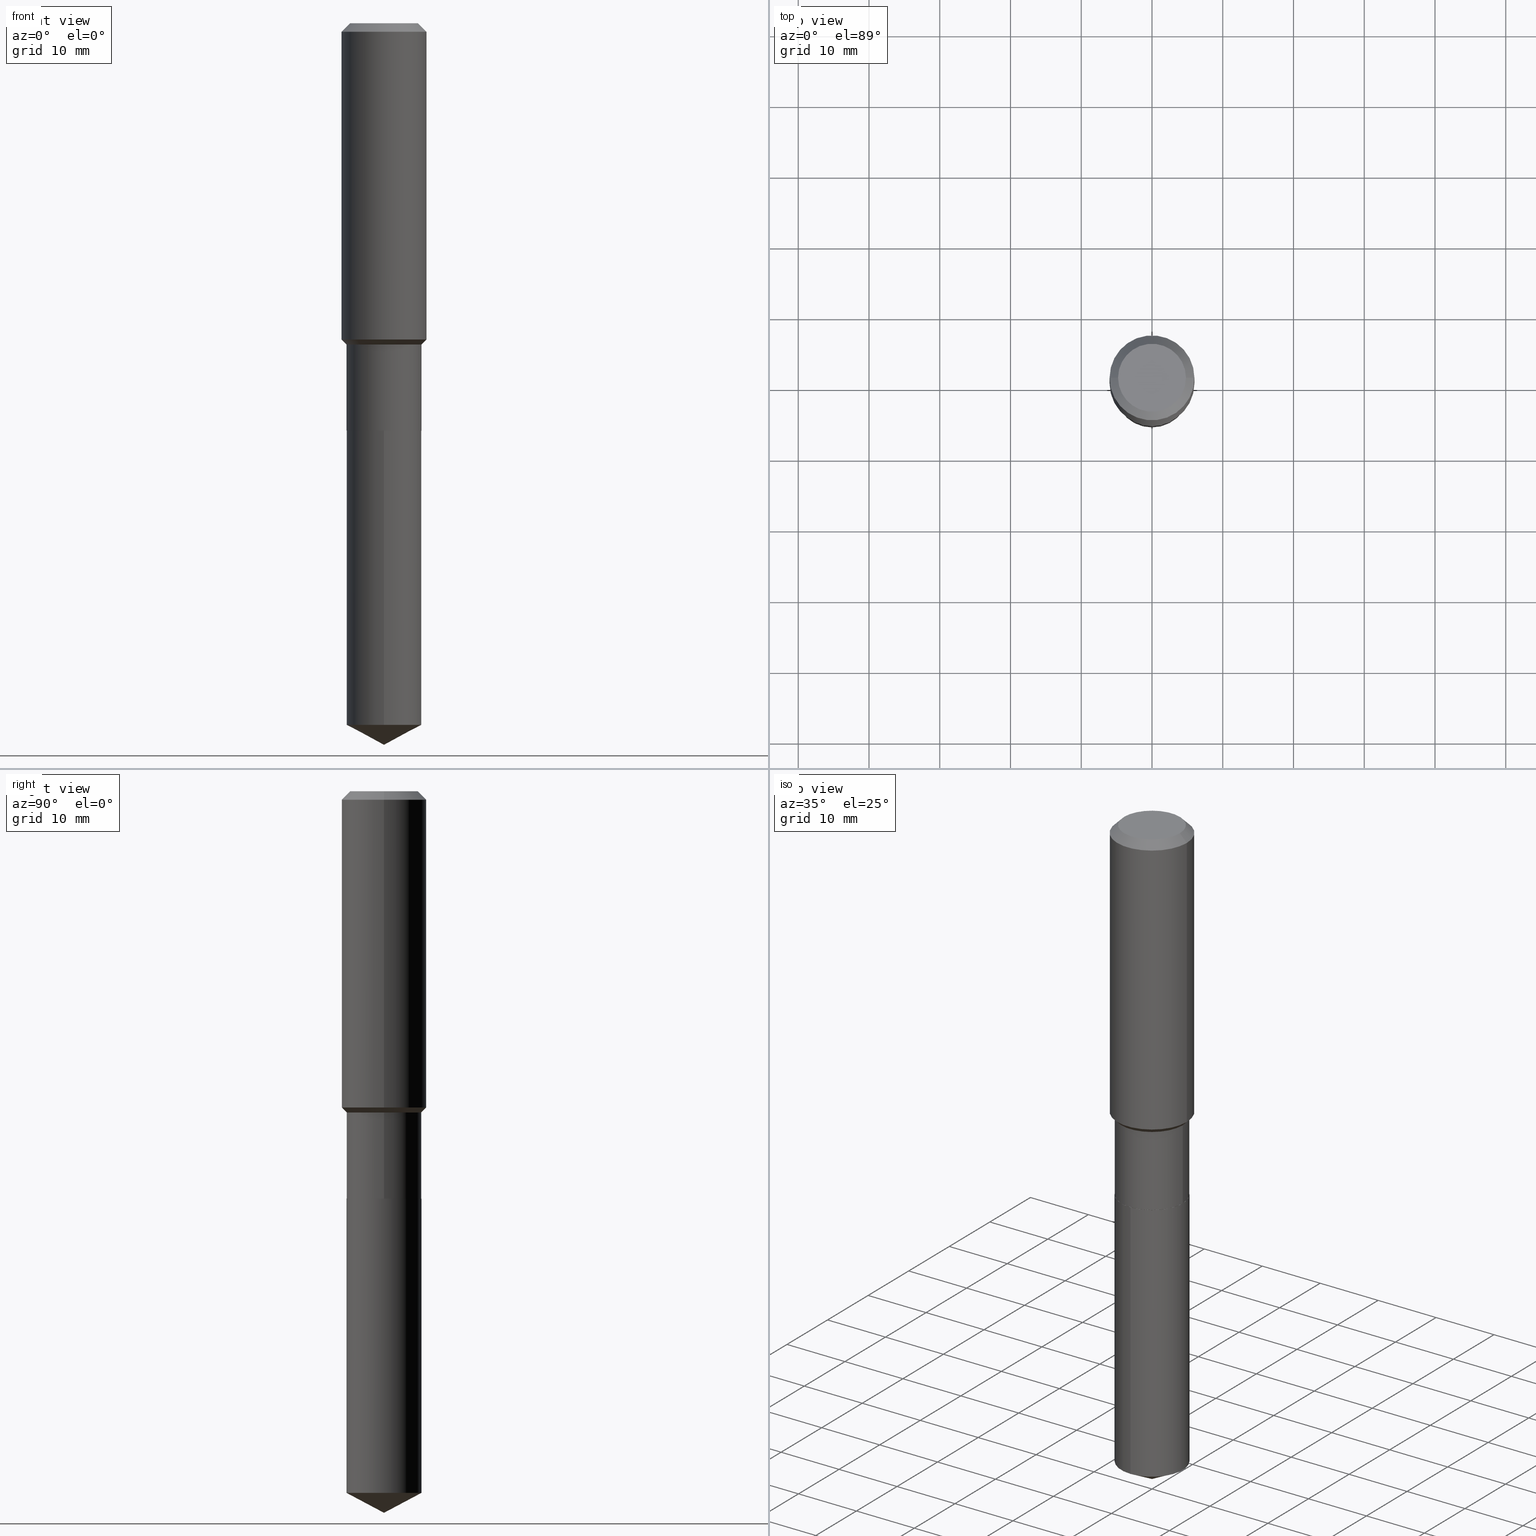
[diagram: canonical four-view strip — front | top / right | iso, engineering-drawing reading convention]
A machine part, canonical four-view strip (front | top / right | iso — engineering-drawing reading convention). The complete STEP part file that produces these views, byte-faithful:
ISO-10303-21;
HEADER;
FILE_DESCRIPTION (( 'STEP AP203' ),
    '1' );
FILE_NAME ('64676.STEP',
    '2024-04-24T18:43:37',
    ( '' ),
    ( '' ),
    'SwSTEP 2.0',
    'SolidWorks 2023',
    '' );
FILE_SCHEMA (( 'CONFIG_CONTROL_DESIGN' ));
ENDSEC;

DATA;
#1 = DIRECTION ( 'NONE',  ( 1.000000000000000000, -6.982962677686263555E-15, 0.000000000000000000 ) ) ;
#2 = CARTESIAN_POINT ( 'NONE',  ( 4.371764584817168227E-29, -6.241721189449890773E-15, -1.787699999999999845 ) ) ;
#3 = CARTESIAN_POINT ( 'NONE',  ( 1.155239464041865506E-30, -1.649375784469511859E-16, -0.04724000000000028177 ) ) ;
#4 = CARTESIAN_POINT ( 'NONE',  ( 0.2361999999999999933, -1.814313362916447440E-15, -0.04724000000000028177 ) ) ;
#5 = CARTESIAN_POINT ( 'NONE',  ( 0.2086499999999999466, -7.698716352149130505E-15, -1.787699999999999845 ) ) ;
#6 = VECTOR ( 'NONE', #81, 39.37007874015748143 ) ;
#7 = VECTOR ( 'NONE', #408, 39.37007874015748143 ) ;
#8 = CARTESIAN_POINT ( 'NONE',  ( 0.000000000000000000, 0.000000000000000000, 0.000000000000000000 ) ) ;
#9 = COORDINATED_UNIVERSAL_TIME_OFFSET ( 5, 0, .BEHIND. ) ;
#10 = DIRECTION ( 'NONE',  ( -2.445388383336124328E-29, 3.491596508940315272E-15, 1.000000000000000000 ) ) ;
#11 = APPROVAL_ROLE ( '' ) ;
#12 = AXIS2_PLACEMENT_3D ( 'NONE', #28, #183, #122 ) ;
#13 = DATE_AND_TIME ( #330, #127 ) ;
#14 = VERTEX_POINT ( 'NONE', #451 ) ;
#15 = ADVANCED_FACE ( 'NONE', ( #274 ), #461, .T. ) ;
#16 = EDGE_CURVE ( 'NONE', #26, #378, #410, .T. ) ;
#17 = ORIENTED_EDGE ( 'NONE', *, *, #181, .F. ) ;
#18 = CARTESIAN_POINT ( 'NONE',  ( 9.819946130962873680E-29, -1.402120410095162262E-14, -4.015699999999999825 ) ) ;
#19 = VERTEX_POINT ( 'NONE', #345 ) ;
#20 = VERTEX_POINT ( 'NONE', #112 ) ;
#21 = CONICAL_SURFACE ( 'NONE', #402, 0.2361999999999999933, 0.7853981633974452814 ) ;
#22 = DIRECTION ( 'NONE',  ( -2.445468806185136597E-29, 3.491481338843145583E-15, 1.000000000000000000 ) ) ;
#23 = VERTEX_POINT ( 'NONE', #231 ) ;
#24 = ORIENTED_EDGE ( 'NONE', *, *, #114, .T. ) ;
#25 = DIRECTION ( 'NONE',  ( -2.445388383336124328E-29, 3.491596508940315272E-15, 1.000000000000000000 ) ) ;
#26 = VERTEX_POINT ( 'NONE', #425 ) ;
#27 = CARTESIAN_POINT ( 'NONE',  ( 0.2081500000000000017, -9.370786765321112099E-15, -2.267600000000000282 ) ) ;
#28 = CARTESIAN_POINT ( 'NONE',  ( -9.427742298522546243E-47, 1.346031739168365344E-32, 3.855188123715862256E-18 ) ) ;
#29 = ORIENTED_EDGE ( 'NONE', *, *, #412, .T. ) ;
#30 = ADVANCED_FACE ( 'NONE', ( #233 ), #156, .T. ) ;
#31 = DIRECTION ( 'NONE',  ( -2.445468806185136597E-29, 3.491481338843145583E-15, 1.000000000000000000 ) ) ;
#32 = ADVANCED_FACE ( 'NONE', ( #391 ), #35, .F. ) ;
#33 = CARTESIAN_POINT ( 'NONE',  ( 5.545345064905416332E-29, -7.917283083960716952E-15, -2.267600000000000282 ) ) ;
#34 = CARTESIAN_POINT ( 'NONE',  ( -9.427742298522546243E-47, 1.346031739168365344E-32, 3.855188123715862256E-18 ) ) ;
#35 = PLANE ( 'NONE',  #82 ) ;
#36 = FACE_OUTER_BOUND ( 'NONE', #324, .T. ) ;
#37 = AXIS2_PLACEMENT_3D ( 'NONE', #42, #244, #277 ) ;
#38 = DIRECTION ( 'NONE',  ( -2.445468806185136597E-29, 3.491481338843145583E-15, 1.000000000000000000 ) ) ;
#39 = CC_DESIGN_PERSON_AND_ORGANIZATION_ASSIGNMENT ( #359, #278, ( #141 ) ) ;
#40 = DIRECTION ( 'NONE',  ( -2.445468806185136597E-29, 3.491481338843145583E-15, 1.000000000000000000 ) ) ;
#41 = DIRECTION ( 'NONE',  ( 2.445468806185136597E-29, -3.491481338843145583E-15, -1.000000000000000000 ) ) ;
#42 = CARTESIAN_POINT ( 'NONE',  ( -8.645500470439431698E-28, 1.234434865445999008E-13, 35.35437874015748605 ) ) ;
#43 = ADVANCED_FACE ( 'NONE', ( #36 ), #346, .T. ) ;
#44 = PERSON_AND_ORGANIZATION ( #87, #358 ) ;
#45 = CC_DESIGN_APPROVAL ( #229, ( #431 ) ) ;
#46 = DIRECTION ( 'NONE',  ( 1.000000000000000000, -6.982962677686266711E-15, 4.876176775795935793E-29 ) ) ;
#47 = CARTESIAN_POINT ( 'NONE',  ( 9.548834242332417038E-29, -1.363358112918744955E-14, -3.904758827083833150 ) ) ;
#48 = CARTESIAN_POINT ( 'NONE',  ( 0.2362000000000002153, -7.794906663034259691E-15, -1.760149999999999881 ) ) ;
#49 = DIRECTION ( 'NONE',  ( -6.982962677686265922E-15, -1.000000000000000000, 2.618593811324479633E-15 ) ) ;
#50 = LOCAL_TIME ( 14, 43, 37.00000000000000000, #9 ) ;
#51 = APPROVAL ( #188, 'UNSPECIFIED' ) ;
#52 = ORIENTED_EDGE ( 'NONE', *, *, #153, .T. ) ;
#53 = ORIENTED_EDGE ( 'NONE', *, *, #406, .F. ) ;
#54 = LINE ( 'NONE', #254, #411 ) ;
#55 = EDGE_LOOP ( 'NONE', ( #248, #221, #167, #286 ) ) ;
#56 = CARTESIAN_POINT ( 'NONE',  ( 4.371764584817168227E-29, -6.241721189449890773E-15, -1.787699999999999845 ) ) ;
#57 = AXIS2_PLACEMENT_3D ( 'NONE', #486, #272, #353 ) ;
#58 = EDGE_LOOP ( 'NONE', ( #133, #212, #372, #290 ) ) ;
#59 = CONICAL_SURFACE ( 'NONE', #456, 0.2086499999999999466, 0.7853981633974513876 ) ;
#60 = CARTESIAN_POINT ( 'NONE',  ( 1.155239464041865506E-30, -1.649375784469511859E-16, -0.04724000000000028177 ) ) ;
#61 = ORIENTED_EDGE ( 'NONE', *, *, #80, .T. ) ;
#62 = FACE_OUTER_BOUND ( 'NONE', #72, .T. ) ;
#63 = EDGE_CURVE ( 'NONE', #301, #175, #310, .T. ) ;
#64 = ORIENTED_EDGE ( 'NONE', *, *, #86, .T. ) ;
#65 = FACE_OUTER_BOUND ( 'NONE', #331, .T. ) ;
#66 = ADVANCED_FACE ( 'NONE', ( #419 ), #459, .T. ) ;
#67 = DIRECTION ( 'NONE',  ( 1.000000000000000000, -6.982962677686266711E-15, 0.000000000000000000 ) ) ;
#68 = AXIS2_PLACEMENT_3D ( 'NONE', #394, #10, #49 ) ;
#69 =( GEOMETRIC_REPRESENTATION_CONTEXT ( 3 ) GLOBAL_UNCERTAINTY_ASSIGNED_CONTEXT ( ( #230 ) ) GLOBAL_UNIT_ASSIGNED_CONTEXT ( ( #147, #307, #240 ) ) REPRESENTATION_CONTEXT ( 'NONE', 'WORKASPACE' ) );
#70 = CC_DESIGN_APPROVAL ( #243, ( #141 ) ) ;
#71 =( LENGTH_UNIT ( ) NAMED_UNIT ( * ) SI_UNIT ( $, .METRE. ) );
#72 = EDGE_LOOP ( 'NONE', ( #130, #415, #137, #78 ) ) ;
#73 = DIRECTION ( 'NONE',  ( 1.000000000000000000, -6.982962677686263555E-15, 0.000000000000000000 ) ) ;
#74 = DESIGN_CONTEXT ( 'detailed design', #228, 'design' ) ;
#75 = DIRECTION ( 'NONE',  ( -2.445468806185136597E-29, 3.491481338843145583E-15, 1.000000000000000000 ) ) ;
#76 = DIRECTION ( 'NONE',  ( -6.982962677686265922E-15, -1.000000000000000000, 3.927890716986719253E-15 ) ) ;
#77 = CIRCLE ( 'NONE', #349, 0.2086500000000000021 ) ;
#78 = ORIENTED_EDGE ( 'NONE', *, *, #315, .T. ) ;
#79 = DATE_AND_TIME ( #361, #242 ) ;
#80 = EDGE_CURVE ( 'NONE', #417, #20, #390, .T. ) ;
#81 = DIRECTION ( 'NONE',  ( -2.445388383336124328E-29, 3.491596508940315272E-15, 1.000000000000000000 ) ) ;
#82 = AXIS2_PLACEMENT_3D ( 'NONE', #386, #387, #262 ) ;
#83 = VECTOR ( 'NONE', #115, 39.37007874015748143 ) ;
#84 = CARTESIAN_POINT ( 'NONE',  ( 4.371764584817168227E-29, -6.241721189449890773E-15, -1.787699999999999845 ) ) ;
#85 = DATE_AND_TIME ( #205, #351 ) ;
#86 = EDGE_CURVE ( 'NONE', #175, #333, #164, .T. ) ;
#87 = PERSON ( 'UNSPECIFIED', 'UNSPECIFIED', 'UNSPECIFIED', ('UNSPECIFIED'), ('UNSPECIFIED'), ('UNSPECIFIED') ) ;
#88 = DIRECTION ( 'NONE',  ( -2.445388383336124328E-29, 3.491596508940315272E-15, 1.000000000000000000 ) ) ;
#89 = VERTEX_POINT ( 'NONE', #383 ) ;
#90 = AXIS2_PLACEMENT_3D ( 'NONE', #110, #235, #73 ) ;
#91 = CIRCLE ( 'NONE', #234, 0.2362000000000002153 ) ;
#92 = PERSON_AND_ORGANIZATION ( #87, #358 ) ;
#93 = DIRECTION ( 'NONE',  ( -6.982962677686265922E-15, -1.000000000000000000, 3.927890716986719253E-15 ) ) ;
#94 = ORIENTED_EDGE ( 'NONE', *, *, #464, .T. ) ;
#95 = DIRECTION ( 'NONE',  ( 1.000000000000000000, -6.982962677686267499E-15, 0.000000000000000000 ) ) ;
#96 = ORIENTED_EDGE ( 'NONE', *, *, #379, .T. ) ;
#97 = DIRECTION ( 'NONE',  ( -2.445468806185136597E-29, 3.491481338843145583E-15, 1.000000000000000000 ) ) ;
#98 = AXIS2_PLACEMENT_3D ( 'NONE', #168, #423, #265 ) ;
#99 = EDGE_LOOP ( 'NONE', ( #140, #170, #17 ) ) ;
#100 = APPROVAL_PERSON_ORGANIZATION ( #317, #51, #466 ) ;
#101 = DIRECTION ( 'NONE',  ( 1.000000000000000000, -6.982962677686267499E-15, 0.000000000000000000 ) ) ;
#102 = ORIENTED_EDGE ( 'NONE', *, *, #376, .F. ) ;
#103 = VERTEX_POINT ( 'NONE', #196 ) ;
#104 = CARTESIAN_POINT ( 'NONE',  ( 1.482547418163544505E-15, 0.2086499999999864019, -3.904758827083833594 ) ) ;
#105 = CARTESIAN_POINT ( 'NONE',  ( 5.545345064905416332E-29, -7.917283083960716952E-15, -2.267600000000000282 ) ) ;
#106 = PERSON_AND_ORGANIZATION ( #87, #358 ) ;
#107 = DIRECTION ( 'NONE',  ( -6.982962677686265922E-15, -1.000000000000000000, 3.927890716986719253E-15 ) ) ;
#108 = AXIS2_PLACEMENT_3D ( 'NONE', #145, #22, #251 ) ;
#109 = CARTESIAN_POINT ( 'NONE',  ( 0.000000000000000000, 0.000000000000000000, 0.000000000000000000 ) ) ;
#110 = CARTESIAN_POINT ( 'NONE',  ( 5.545345064905416332E-29, -7.917283083960716952E-15, -2.267600000000000282 ) ) ;
#111 = ORIENTED_EDGE ( 'NONE', *, *, #325, .T. ) ;
#112 = CARTESIAN_POINT ( 'NONE',  ( -0.2362000000000002153, -4.467228936699403616E-15, -1.760149999999999881 ) ) ;
#113 = DATE_AND_TIME ( #116, #266 ) ;
#114 = EDGE_CURVE ( 'NONE', #448, #19, #380, .T. ) ;
#115 = DIRECTION ( 'NONE',  ( -2.445468806185136877E-29, 3.491481338843145188E-15, 1.000000000000000000 ) ) ;
#116 = CALENDAR_DATE ( 2024, 24, 4 ) ;
#117 = PERSON_AND_ORGANIZATION ( #87, #358 ) ;
#118 = AXIS2_PLACEMENT_3D ( 'NONE', #227, #308, #107 ) ;
#119 = AXIS2_PLACEMENT_3D ( 'NONE', #33, #267, #312 ) ;
#120 = AXIS2_PLACEMENT_3D ( 'NONE', #60, #31, #186 ) ;
#121 = LINE ( 'NONE', #163, #339 ) ;
#122 = DIRECTION ( 'NONE',  ( 1.000000000000000000, -6.982962677686266711E-15, 4.876185090822587894E-29 ) ) ;
#123 = CC_DESIGN_DATE_AND_TIME_ASSIGNMENT ( #79, #432, ( #431 ) ) ;
#124 = LINE ( 'NONE', #197, #6 ) ;
#125 = EDGE_LOOP ( 'NONE', ( #371, #178, #374, #209 ) ) ;
#126 = CONICAL_SURFACE ( 'NONE', #37, 74.04434902938353957, 1.082104136236486491 ) ;
#127 = LOCAL_TIME ( 14, 43, 37.00000000000000000, #289 ) ;
#128 = DATE_TIME_ROLE ( 'classification_date' ) ;
#129 = CYLINDRICAL_SURFACE ( 'NONE', #438, 0.2086500000000000021 ) ;
#130 = ORIENTED_EDGE ( 'NONE', *, *, #325, .F. ) ;
#131 = EDGE_LOOP ( 'NONE', ( #409, #185, #447, #429 ) ) ;
#132 = LINE ( 'NONE', #256, #302 ) ;
#133 = ORIENTED_EDGE ( 'NONE', *, *, #226, .F. ) ;
#134 = EDGE_LOOP ( 'NONE', ( #29, #482, #404, #173 ) ) ;
#135 = DIMENSIONAL_EXPONENTS ( 1.000000000000000000, 0.000000000000000000, 0.000000000000000000, 0.000000000000000000, 0.000000000000000000, 0.000000000000000000, 0.000000000000000000 ) ;
#136 = LINE ( 'NONE', #252, #7 ) ;
#137 = ORIENTED_EDGE ( 'NONE', *, *, #158, .T. ) ;
#138 = AXIS2_PLACEMENT_3D ( 'NONE', #84, #354, #319 ) ;
#139 = VECTOR ( 'NONE', #441, 39.37007874015748854 ) ;
#140 = ORIENTED_EDGE ( 'NONE', *, *, #422, .F. ) ;
#141 = SECURITY_CLASSIFICATION ( '', '', #360 ) ;
#142 = CARTESIAN_POINT ( 'NONE',  ( 9.820314062951770429E-29, -1.402068178152693983E-14, -4.015699999999999825 ) ) ;
#143 = ADVANCED_FACE ( 'NONE', ( #152 ), #144, .F. ) ;
#144 = PLANE ( 'NONE',  #119 ) ;
#145 = CARTESIAN_POINT ( 'NONE',  ( 5.545345064905416332E-29, -7.917283083960716952E-15, -2.267600000000000282 ) ) ;
#146 = CARTESIAN_POINT ( 'NONE',  ( -0.2086499999999999466, -4.759173771286441720E-15, -1.787699999999999845 ) ) ;
#147 =( CONVERSION_BASED_UNIT ( 'INCH', #162 ) LENGTH_UNIT ( ) NAMED_UNIT ( #135 ) );
#148 = ADVANCED_FACE ( 'NONE', ( #190 ), #149, .T. ) ;
#149 = CYLINDRICAL_SURFACE ( 'NONE', #320, 0.2362000000000001043 ) ;
#150 = DIRECTION ( 'NONE',  ( -6.982962677686265922E-15, -1.000000000000000000, 3.541896320645560869E-15 ) ) ;
#151 = CARTESIAN_POINT ( 'NONE',  ( -1.456995162699183723E-15, -0.2086500000000079402, -2.267599999999999394 ) ) ;
#152 = FACE_OUTER_BOUND ( 'NONE', #407, .T. ) ;
#153 = EDGE_CURVE ( 'NONE', #366, #448, #124, .T. ) ;
#154 = FACE_OUTER_BOUND ( 'NONE', #329, .T. ) ;
#155 = APPROVAL_STATUS ( 'not_yet_approved' ) ;
#156 = CONICAL_SURFACE ( 'NONE', #420, 74.04434902938353957, 1.082104136236486491 ) ;
#157 = CIRCLE ( 'NONE', #388, 0.2081500000000000017 ) ;
#158 = EDGE_CURVE ( 'NONE', #14, #333, #121, .T. ) ;
#159 = DIRECTION ( 'NONE',  ( -2.445468806185136597E-29, 3.491481338843145583E-15, 1.000000000000000000 ) ) ;
#160 = DIRECTION ( 'NONE',  ( 0.000000000000000000, 0.000000000000000000, 1.000000000000000000 ) ) ;
#161 = DIRECTION ( 'NONE',  ( -2.445468806185136597E-29, 3.491481338843145583E-15, 1.000000000000000000 ) ) ;
#162 = LENGTH_MEASURE_WITH_UNIT ( LENGTH_MEASURE( 0.02539999999999999897 ), #71 );
#163 = CARTESIAN_POINT ( 'NONE',  ( -0.2361999999999999933, 1.484438206022545019E-15, -0.04724000000000028177 ) ) ;
#164 = CIRCLE ( 'NONE', #281, 0.2361999999999999933 ) ;
#165 = VECTOR ( 'NONE', #375, 39.37007874015748143 ) ;
#166 = MANIFOLD_SOLID_BREP ( 'Body-Move/Copy2[1]', #348 ) ;
#167 = ORIENTED_EDGE ( 'NONE', *, *, #264, .T. ) ;
#168 = CARTESIAN_POINT ( 'NONE',  ( 0.000000000000000000, 0.000000000000000000, 0.000000000000000000 ) ) ;
#169 = CALENDAR_DATE ( 2024, 24, 4 ) ;
#170 = ORIENTED_EDGE ( 'NONE', *, *, #433, .T. ) ;
#171 = ADVANCED_FACE ( 'NONE', ( #434 ), #363, .T. ) ;
#172 = CARTESIAN_POINT ( 'NONE',  ( 4.371764584817168227E-29, -6.241721189449890773E-15, -1.787699999999999845 ) ) ;
#173 = ORIENTED_EDGE ( 'NONE', *, *, #63, .F. ) ;
#174 = EDGE_CURVE ( 'NONE', #19, #448, #207, .T. ) ;
#175 = VERTEX_POINT ( 'NONE', #4 ) ;
#176 = FACE_OUTER_BOUND ( 'NONE', #440, .T. ) ;
#177 = EDGE_LOOP ( 'NONE', ( #94, #61, #306, #102 ) ) ;
#178 = ORIENTED_EDGE ( 'NONE', *, *, #260, .T. ) ;
#179 = DIRECTION ( 'NONE',  ( -2.445468806185136597E-29, 3.491481338843145583E-15, 1.000000000000000000 ) ) ;
#180 = ORIENTED_EDGE ( 'NONE', *, *, #174, .F. ) ;
#181 = EDGE_CURVE ( 'NONE', #366, #192, #247, .T. ) ;
#182 = DIRECTION ( 'NONE',  ( 0.7071067811865496822, -2.468850131082279149E-15, 0.7071067811865453523 ) ) ;
#183 = DIRECTION ( 'NONE',  ( -2.445468806185136597E-29, 3.491481338843145583E-15, 1.000000000000000000 ) ) ;
#184 = AXIS2_PLACEMENT_3D ( 'NONE', #109, #160, #399 ) ;
#185 = ORIENTED_EDGE ( 'NONE', *, *, #453, .T. ) ;
#186 = DIRECTION ( 'NONE',  ( 1.000000000000000000, -6.982962677686266711E-15, 0.000000000000000000 ) ) ;
#187 = CARTESIAN_POINT ( 'NONE',  ( 5.545345064905416332E-29, -7.917283083960716952E-15, -2.267600000000000282 ) ) ;
#188 = APPROVAL_STATUS ( 'not_yet_approved' ) ;
#189 = DIRECTION ( 'NONE',  ( -2.445388383336124328E-29, 3.491596508940315272E-15, 1.000000000000000000 ) ) ;
#190 = FACE_OUTER_BOUND ( 'NONE', #421, .T. ) ;
#191 = ADVANCED_FACE ( 'NONE', ( #154 ), #126, .T. ) ;
#192 = VERTEX_POINT ( 'NONE', #200 ) ;
#193 = CIRCLE ( 'NONE', #223, 0.2086499999999999466 ) ;
#194 = AXIS2_PLACEMENT_3D ( 'NONE', #405, #97, #373 ) ;
#195 = FACE_OUTER_BOUND ( 'NONE', #131, .T. ) ;
#196 = CARTESIAN_POINT ( 'NONE',  ( -0.2086500000000000021, -5.596081848207143663E-15, -2.267100000000000115 ) ) ;
#197 = CARTESIAN_POINT ( 'NONE',  ( 1.482547418163504470E-15, 0.2086499999999920918, -2.267600000000001170 ) ) ;
#198 = PERSON_AND_ORGANIZATION_ROLE ( 'creator' ) ;
#199 = CC_DESIGN_PERSON_AND_ORGANIZATION_ASSIGNMENT ( #117, #198, ( #431 ) ) ;
#200 = CARTESIAN_POINT ( 'NONE',  ( -1.456995162699143886E-15, -0.2086500000000136301, -3.904758827083832706 ) ) ;
#201 = PERSON_AND_ORGANIZATION_ROLE ( 'design_supplier' ) ;
#202 = VECTOR ( 'NONE', #299, 39.37007874015748143 ) ;
#203 = CARTESIAN_POINT ( 'NONE',  ( 5.544122330502323530E-29, -7.915537343291296237E-15, -2.267100000000000115 ) ) ;
#204 = APPLICATION_CONTEXT ( 'configuration controlled 3d designs of mechanical parts and assemblies' ) ;
#205 = CALENDAR_DATE ( 2024, 24, 4 ) ;
#206 = COORDINATED_UNIVERSAL_TIME_OFFSET ( 5, 0, .BEHIND. ) ;
#207 = CIRCLE ( 'NONE', #273, 0.2086500000000000021 ) ;
#208 = ADVANCED_FACE ( 'NONE', ( #401 ), #357, .T. ) ;
#209 = ORIENTED_EDGE ( 'NONE', *, *, #379, .F. ) ;
#210 = DIRECTION ( 'NONE',  ( -2.445468806185136877E-29, 3.491481338843145188E-15, 1.000000000000000000 ) ) ;
#211 = DIRECTION ( 'NONE',  ( 1.000000000000000000, -6.982962677686265922E-15, 0.000000000000000000 ) ) ;
#212 = ORIENTED_EDGE ( 'NONE', *, *, #406, .T. ) ;
#213 = CARTESIAN_POINT ( 'NONE',  ( -0.2086499999999999466, -5.596081848207143663E-15, -1.787699999999999845 ) ) ;
#214 = VECTOR ( 'NONE', #224, 39.37007874015748143 ) ;
#215 = CIRCLE ( 'NONE', #194, 0.2362000000000002153 ) ;
#216 = PRODUCT_DEFINITION_FORMATION_WITH_SPECIFIED_SOURCE ( 'ANY', '', #279, .NOT_KNOWN. ) ;
#217 = ORIENTED_EDGE ( 'NONE', *, *, #16, .F. ) ;
#218 = DIRECTION ( 'NONE',  ( -2.445468806185136597E-29, 3.491481338843145583E-15, 1.000000000000000000 ) ) ;
#219 = ORIENTED_EDGE ( 'NONE', *, *, #174, .T. ) ;
#220 = DIRECTION ( 'NONE',  ( 6.982962677686265922E-15, 1.000000000000000000, -3.491596508940315272E-15 ) ) ;
#221 = ORIENTED_EDGE ( 'NONE', *, *, #181, .T. ) ;
#222 = CARTESIAN_POINT ( 'NONE',  ( 5.545345064905416332E-29, -7.917283083960716952E-15, -2.267600000000000282 ) ) ;
#223 = AXIS2_PLACEMENT_3D ( 'NONE', #172, #327, #95 ) ;
#224 = DIRECTION ( 'NONE',  ( -2.445468806185136877E-29, 3.491481338843145188E-15, 1.000000000000000000 ) ) ;
#225 = APPLICATION_PROTOCOL_DEFINITION ( 'international standard', 'config_control_design', 1994, #204 ) ;
#226 = EDGE_CURVE ( 'NONE', #103, #417, #316, .T. ) ;
#227 = CARTESIAN_POINT ( 'NONE',  ( 5.545345064905416332E-29, -7.917283083960716952E-15, -2.267600000000000282 ) ) ;
#228 = APPLICATION_CONTEXT ( 'configuration controlled 3d designs of mechanical parts and assemblies' ) ;
#229 = APPROVAL ( #155, 'UNSPECIFIED' ) ;
#230 = UNCERTAINTY_MEASURE_WITH_UNIT (LENGTH_MEASURE( 1.000000000000000082E-05 ), #147, 'distance_accuracy_value', 'NONE');
#231 = CARTESIAN_POINT ( 'NONE',  ( 0.2086500000000000021, -9.372532505990534391E-15, -2.267100000000000115 ) ) ;
#232 = DIRECTION ( 'NONE',  ( 1.000000000000000000, -6.982962677686266711E-15, 0.000000000000000000 ) ) ;
#233 = FACE_OUTER_BOUND ( 'NONE', #99, .T. ) ;
#234 = AXIS2_PLACEMENT_3D ( 'NONE', #271, #75, #232 ) ;
#235 = DIRECTION ( 'NONE',  ( -2.445468806185136597E-29, 3.491481338843145583E-15, 1.000000000000000000 ) ) ;
#236 = CC_DESIGN_PERSON_AND_ORGANIZATION_ASSIGNMENT ( #106, #237, ( #216 ) ) ;
#237 = PERSON_AND_ORGANIZATION_ROLE ( 'creator' ) ;
#238 = DIRECTION ( 'NONE',  ( -6.982962677686265922E-15, -1.000000000000000000, 3.927890716986719253E-15 ) ) ;
#239 = EDGE_CURVE ( 'NONE', #23, #103, #484, .T. ) ;
#240 =( NAMED_UNIT ( * ) SI_UNIT ( $, .STERADIAN. ) SOLID_ANGLE_UNIT ( ) );
#241 = AXIS2_PLACEMENT_3D ( 'NONE', #476, #332, #220 ) ;
#242 = LOCAL_TIME ( 14, 43, 37.00000000000000000, #206 ) ;
#243 = APPROVAL ( #245, 'UNSPECIFIED' ) ;
#244 = DIRECTION ( 'NONE',  ( -2.445388383336124328E-29, 3.491596508940315272E-15, 1.000000000000000000 ) ) ;
#245 = APPROVAL_STATUS ( 'not_yet_approved' ) ;
#246 = ADVANCED_FACE ( 'NONE', ( #296 ), #303, .T. ) ;
#247 = CIRCLE ( 'NONE', #68, 0.2086500000000000021 ) ;
#248 = ORIENTED_EDGE ( 'NONE', *, *, #153, .F. ) ;
#249 = CC_DESIGN_SECURITY_CLASSIFICATION ( #141, ( #216 ) ) ;
#250 = ORIENTED_EDGE ( 'NONE', *, *, #260, .F. ) ;
#251 = DIRECTION ( 'NONE',  ( 1.000000000000000000, -6.982962677686263555E-15, 0.000000000000000000 ) ) ;
#252 = CARTESIAN_POINT ( 'NONE',  ( 0.2086499999999999744, -1.456995162699239338E-15, 1.017414284269821845E-29 ) ) ;
#253 = ORIENTED_EDGE ( 'NONE', *, *, #63, .T. ) ;
#254 = CARTESIAN_POINT ( 'NONE',  ( -0.2362000000000001043, 1.678301941865357380E-15, -1.161852468318209317E-29 ) ) ;
#255 = ORIENTED_EDGE ( 'NONE', *, *, #264, .F. ) ;
#256 = CARTESIAN_POINT ( 'NONE',  ( 0.2086499999999999466, -7.698716352149130505E-15, -1.787699999999999845 ) ) ;
#257 = EDGE_LOOP ( 'NONE', ( #469, #477, #258, #368 ) ) ;
#258 = ORIENTED_EDGE ( 'NONE', *, *, #464, .F. ) ;
#259 = CARTESIAN_POINT ( 'NONE',  ( 5.544122330502323530E-29, -7.915537343291296237E-15, -2.267100000000000115 ) ) ;
#260 = EDGE_CURVE ( 'NONE', #378, #103, #385, .T. ) ;
#261 = LINE ( 'NONE', #151, #282 ) ;
#262 = DIRECTION ( 'NONE',  ( -1.000000000000000000, 6.982962677686265922E-15, -4.876176775795935793E-29 ) ) ;
#263 = DIRECTION ( 'NONE',  ( -1.000000000000000000, 6.982962677686266711E-15, 0.000000000000000000 ) ) ;
#264 = EDGE_CURVE ( 'NONE', #192, #19, #261, .T. ) ;
#265 = DIRECTION ( 'NONE',  ( 1.000000000000000000, -6.982962677686266711E-15, 4.876176775795935793E-29 ) ) ;
#266 = LOCAL_TIME ( 14, 43, 37.00000000000000000, #430 ) ;
#267 = DIRECTION ( 'NONE',  ( -2.438088387897960049E-29, 3.491481338843145188E-15, 1.000000000000000000 ) ) ;
#268 = EDGE_CURVE ( 'NONE', #304, #14, #326, .T. ) ;
#269 = PERSON_AND_ORGANIZATION ( #87, #358 ) ;
#270 = DIRECTION ( 'NONE',  ( 1.000000000000000000, -6.982962677686266711E-15, 4.876176775795935793E-29 ) ) ;
#271 = CARTESIAN_POINT ( 'NONE',  ( 4.304391919206767645E-29, -6.145530878564761588E-15, -1.760149999999999881 ) ) ;
#272 = DIRECTION ( 'NONE',  ( -2.445468806185136597E-29, 3.491481338843145583E-15, 1.000000000000000000 ) ) ;
#273 = AXIS2_PLACEMENT_3D ( 'NONE', #362, #88, #238 ) ;
#274 = FACE_OUTER_BOUND ( 'NONE', #55, .T. ) ;
#275 = AXIS2_PLACEMENT_3D ( 'NONE', #8, #159, #46 ) ;
#276 = APPROVAL_DATE_TIME ( #85, #51 ) ;
#277 = DIRECTION ( 'NONE',  ( -6.982962677686265922E-15, -1.000000000000000000, 3.541896320645560869E-15 ) ) ;
#278 = PERSON_AND_ORGANIZATION_ROLE ( 'classification_officer' ) ;
#279 = PRODUCT ( '64676', '64676', '', ( #384 ) ) ;
#280 = DIRECTION ( 'NONE',  ( -6.982962677686265922E-15, -1.000000000000000000, 2.618593811324479633E-15 ) ) ;
#281 = AXIS2_PLACEMENT_3D ( 'NONE', #3, #38, #67 ) ;
#282 = VECTOR ( 'NONE', #189, 39.37007874015748143 ) ;
#283 = DATE_AND_TIME ( #169, #50 ) ;
#284 = EDGE_CURVE ( 'NONE', #20, #301, #91, .T. ) ;
#285 = ADVANCED_FACE ( 'NONE', ( #195 ), #59, .T. ) ;
#286 = ORIENTED_EDGE ( 'NONE', *, *, #114, .F. ) ;
#287 = CONICAL_SURFACE ( 'NONE', #108, 0.2081500000000000017, 0.7853981633975507526 ) ;
#288 = APPROVAL_PERSON_ORGANIZATION ( #92, #243, #292 ) ;
#289 = COORDINATED_UNIVERSAL_TIME_OFFSET ( 5, 0, .BEHIND. ) ;
#290 = ORIENTED_EDGE ( 'NONE', *, *, #453, .F. ) ;
#291 = FACE_OUTER_BOUND ( 'NONE', #125, .T. ) ;
#292 = APPROVAL_ROLE ( '' ) ;
#293 = ORIENTED_EDGE ( 'NONE', *, *, #158, .F. ) ;
#294 = ADVANCED_BREP_SHAPE_REPRESENTATION ( '64676', ( #166, #337, #184 ), #69 ) ;
#295 = DIRECTION ( 'NONE',  ( 2.445468806185136597E-29, -3.491481338843145583E-15, -1.000000000000000000 ) ) ;
#296 = FACE_OUTER_BOUND ( 'NONE', #134, .T. ) ;
#297 = ORIENTED_EDGE ( 'NONE', *, *, #355, .F. ) ;
#298 = AXIS2_PLACEMENT_3D ( 'NONE', #187, #424, #76 ) ;
#299 = DIRECTION ( 'NONE',  ( 0.7071067811865453523, -7.319954787623248157E-15, -0.7071067811865496822 ) ) ;
#300 = EDGE_CURVE ( 'NONE', #14, #304, #382, .T. ) ;
#301 = VERTEX_POINT ( 'NONE', #48 ) ;
#302 = VECTOR ( 'NONE', #182, 39.37007874015748143 ) ;
#303 = CYLINDRICAL_SURFACE ( 'NONE', #98, 0.2362000000000001043 ) ;
#304 = VERTEX_POINT ( 'NONE', #396 ) ;
#305 = CARTESIAN_POINT ( 'NONE',  ( 0.2361999999999999933, -1.785387205520586782E-15, -0.04724000000000028177 ) ) ;
#306 = ORIENTED_EDGE ( 'NONE', *, *, #412, .F. ) ;
#307 =( NAMED_UNIT ( * ) PLANE_ANGLE_UNIT ( ) SI_UNIT ( $, .RADIAN. ) );
#308 = DIRECTION ( 'NONE',  ( -2.445388383336124328E-29, 3.491596508940315272E-15, 1.000000000000000000 ) ) ;
#309 = CARTESIAN_POINT ( 'NONE',  ( 0.000000000000000000, 0.000000000000000000, 0.000000000000000000 ) ) ;
#310 = LINE ( 'NONE', #342, #214 ) ;
#311 = CC_DESIGN_PERSON_AND_ORGANIZATION_ASSIGNMENT ( #44, #201, ( #216 ) ) ;
#312 = DIRECTION ( 'NONE',  ( 1.000000000000000000, -6.982962677686265922E-15, 4.876176775795935793E-29 ) ) ;
#313 = CONICAL_SURFACE ( 'NONE', #463, 0.2361999999999999933, 0.7853981633974452814 ) ;
#314 = APPROVAL_DATE_TIME ( #113, #229 ) ;
#315 = EDGE_CURVE ( 'NONE', #333, #175, #341, .T. ) ;
#316 = LINE ( 'NONE', #465, #83 ) ;
#317 = PERSON_AND_ORGANIZATION ( #87, #358 ) ;
#318 = PRODUCT_DEFINITION_SHAPE ( 'NONE', 'NONE',  #431 ) ;
#319 = DIRECTION ( 'NONE',  ( 1.000000000000000000, -6.982962677686267499E-15, 0.000000000000000000 ) ) ;
#320 = AXIS2_PLACEMENT_3D ( 'NONE', #309, #457, #270 ) ;
#321 = CIRCLE ( 'NONE', #445, 0.2086500000000000021 ) ;
#322 = ADVANCED_FACE ( 'NONE', ( #176 ), #418, .F. ) ;
#323 = ORIENTED_EDGE ( 'NONE', *, *, #355, .T. ) ;
#324 = EDGE_LOOP ( 'NONE', ( #250, #323, #96, #53 ) ) ;
#325 = EDGE_CURVE ( 'NONE', #304, #175, #343, .T. ) ;
#326 = CIRCLE ( 'NONE', #413, 0.1889600000000000168 ) ;
#327 = DIRECTION ( 'NONE',  ( -2.445468806185136597E-29, 3.491481338843145583E-15, 1.000000000000000000 ) ) ;
#328 = ADVANCED_FACE ( 'NONE', ( #381 ), #129, .T. ) ;
#329 = EDGE_LOOP ( 'NONE', ( #338, #480, #437 ) ) ;
#330 = CALENDAR_DATE ( 2024, 24, 4 ) ;
#331 = EDGE_LOOP ( 'NONE', ( #474, #111, #64, #293 ) ) ;
#332 = DIRECTION ( 'NONE',  ( 2.445388383336124048E-29, -3.491596508940315272E-15, -1.000000000000000000 ) ) ;
#333 = VERTEX_POINT ( 'NONE', #478 ) ;
#334 = ORIENTED_EDGE ( 'NONE', *, *, #426, .F. ) ;
#335 = PRODUCT_RELATED_PRODUCT_CATEGORY ( 'detail', '', ( #279 ) ) ;
#336 = DIRECTION ( 'NONE',  ( -6.165590087286835240E-15, -0.8829475928589263223, 0.4694715627858919715 ) ) ;
#337 = MANIFOLD_SOLID_BREP ( 'Body-Move/Copy2[2]', #455 ) ;
#338 = ORIENTED_EDGE ( 'NONE', *, *, #433, .F. ) ;
#339 = VECTOR ( 'NONE', #397, 39.37007874015748143 ) ;
#340 = DIRECTION ( 'NONE',  ( 1.000000000000000000, -6.982962677686265922E-15, 0.000000000000000000 ) ) ;
#341 = CIRCLE ( 'NONE', #120, 0.2361999999999999933 ) ;
#342 = CARTESIAN_POINT ( 'NONE',  ( 0.2362000000000001043, -1.649375784469496920E-15, 1.151752954443000508E-29 ) ) ;
#343 = LINE ( 'NONE', #305, #202 ) ;
#344 = EDGE_LOOP ( 'NONE', ( #365, #52, #180, #255 ) ) ;
#345 = CARTESIAN_POINT ( 'NONE',  ( -1.456995162699183723E-15, -0.2086500000000079402, -2.267599999999999394 ) ) ;
#346 = CONICAL_SURFACE ( 'NONE', #427, 0.2081500000000000017, 0.7853981633975507526 ) ;
#347 = DIRECTION ( 'NONE',  ( -0.7071067811866199593, 7.493145998870616062E-15, 0.7071067811864750752 ) ) ;
#348 = CLOSED_SHELL ( 'NONE', ( #328, #191, #30, #15, #322 ) ) ;
#349 = AXIS2_PLACEMENT_3D ( 'NONE', #259, #218, #340 ) ;
#350 = CARTESIAN_POINT ( 'NONE',  ( -8.645500470439431698E-28, 1.234434865445999008E-13, 35.35437874015748605 ) ) ;
#351 = LOCAL_TIME ( 14, 43, 37.00000000000000000, #452 ) ;
#352 = CC_DESIGN_PERSON_AND_ORGANIZATION_ASSIGNMENT ( #269, #395, ( #279 ) ) ;
#353 = DIRECTION ( 'NONE',  ( 1.000000000000000000, -6.982962677686266711E-15, 4.876176775795935793E-29 ) ) ;
#354 = DIRECTION ( 'NONE',  ( -2.445468806185136597E-29, 3.491481338843145583E-15, 1.000000000000000000 ) ) ;
#355 = EDGE_CURVE ( 'NONE', #378, #26, #157, .T. ) ;
#356 = APPLICATION_PROTOCOL_DEFINITION ( 'international standard', 'config_control_design', 1994, #228 ) ;
#357 = CYLINDRICAL_SURFACE ( 'NONE', #275, 0.2086499999999999744 ) ;
#358 = ORGANIZATION ( 'UNSPECIFIED', 'UNSPECIFIED', '' ) ;
#359 = PERSON_AND_ORGANIZATION ( #87, #358 ) ;
#360 = SECURITY_CLASSIFICATION_LEVEL ( 'unclassified' ) ;
#361 = CALENDAR_DATE ( 2024, 24, 4 ) ;
#362 = CARTESIAN_POINT ( 'NONE',  ( 5.545345064905416332E-29, -7.917283083960716952E-15, -2.267600000000000282 ) ) ;
#363 = CONICAL_SURFACE ( 'NONE', #138, 0.2086499999999999466, 0.7853981633974513876 ) ;
#364 = AXIS2_PLACEMENT_3D ( 'NONE', #203, #161, #211 ) ;
#365 = ORIENTED_EDGE ( 'NONE', *, *, #472, .T. ) ;
#366 = VERTEX_POINT ( 'NONE', #104 ) ;
#367 = LINE ( 'NONE', #18, #428 ) ;
#368 = ORIENTED_EDGE ( 'NONE', *, *, #462, .F. ) ;
#369 = VECTOR ( 'NONE', #347, 39.37007874015748143 ) ;
#370 = CARTESIAN_POINT ( 'NONE',  ( 1.155239464041865506E-30, -1.649375784469511859E-16, -0.04724000000000028177 ) ) ;
#371 = ORIENTED_EDGE ( 'NONE', *, *, #16, .T. ) ;
#372 = ORIENTED_EDGE ( 'NONE', *, *, #462, .T. ) ;
#373 = DIRECTION ( 'NONE',  ( 1.000000000000000000, -6.982962677686266711E-15, 0.000000000000000000 ) ) ;
#374 = ORIENTED_EDGE ( 'NONE', *, *, #239, .F. ) ;
#375 = DIRECTION ( 'NONE',  ( 0.7071067811866199593, -2.468850131083015945E-15, 0.7071067811864750752 ) ) ;
#376 = EDGE_CURVE ( 'NONE', #471, #301, #132, .T. ) ;
#377 = DIRECTION ( 'NONE',  ( 1.000000000000000000, -6.982962677686267499E-15, 0.000000000000000000 ) ) ;
#378 = VERTEX_POINT ( 'NONE', #487 ) ;
#379 = EDGE_CURVE ( 'NONE', #26, #23, #446, .T. ) ;
#380 = CIRCLE ( 'NONE', #118, 0.2086500000000000021 ) ;
#381 = FACE_OUTER_BOUND ( 'NONE', #344, .T. ) ;
#382 = CIRCLE ( 'NONE', #12, 0.1889600000000000168 ) ;
#383 = CARTESIAN_POINT ( 'NONE',  ( 9.819946130962873680E-29, -1.402120410095162577E-14, -4.015699999999999825 ) ) ;
#384 = MECHANICAL_CONTEXT ( 'NONE', #204, 'mechanical' ) ;
#385 = LINE ( 'NONE', #450, #369 ) ;
#386 = CARTESIAN_POINT ( 'NONE',  ( -4.713871149261273121E-47, 6.730158695841826722E-33, 1.927594061857931128E-18 ) ) ;
#387 = DIRECTION ( 'NONE',  ( 2.438088387897960049E-29, -3.491481338843145188E-15, -1.000000000000000000 ) ) ;
#388 = AXIS2_PLACEMENT_3D ( 'NONE', #222, #179, #481 ) ;
#389 = CC_DESIGN_APPROVAL ( #51, ( #216 ) ) ;
#390 = LINE ( 'NONE', #146, #436 ) ;
#391 = FACE_OUTER_BOUND ( 'NONE', #435, .T. ) ;
#392 = DIRECTION ( 'NONE',  ( -2.445388383336124328E-29, 3.491596508940315272E-15, 1.000000000000000000 ) ) ;
#393 = ADVANCED_FACE ( 'NONE', ( #65 ), #313, .T. ) ;
#394 = CARTESIAN_POINT ( 'NONE',  ( 9.548834242332417038E-29, -1.363358112918744955E-14, -3.904758827083833150 ) ) ;
#395 = PERSON_AND_ORGANIZATION_ROLE ( 'design_owner' ) ;
#396 = CARTESIAN_POINT ( 'NONE',  ( 0.1889600000000000168, -1.540873453589747738E-15, 3.855188123725863225E-18 ) ) ;
#397 = DIRECTION ( 'NONE',  ( -0.7071067811865453523, 2.468850131082234184E-15, -0.7071067811865496822 ) ) ;
#398 = CIRCLE ( 'NONE', #468, 0.2086499999999999466 ) ;
#399 = DIRECTION ( 'NONE',  ( 1.000000000000000000, 0.000000000000000000, 0.000000000000000000 ) ) ;
#400 = PERSON_AND_ORGANIZATION ( #87, #358 ) ;
#401 = FACE_OUTER_BOUND ( 'NONE', #58, .T. ) ;
#402 = AXIS2_PLACEMENT_3D ( 'NONE', #370, #41, #263 ) ;
#403 = ADVANCED_FACE ( 'NONE', ( #291 ), #287, .T. ) ;
#404 = ORIENTED_EDGE ( 'NONE', *, *, #86, .F. ) ;
#405 = CARTESIAN_POINT ( 'NONE',  ( 4.304391919206767645E-29, -6.145530878564761588E-15, -1.760149999999999881 ) ) ;
#406 = EDGE_CURVE ( 'NONE', #103, #23, #77, .T. ) ;
#407 = EDGE_LOOP ( 'NONE', ( #217, #297 ) ) ;
#408 = DIRECTION ( 'NONE',  ( -2.445468806185136877E-29, 3.491481338843145188E-15, 1.000000000000000000 ) ) ;
#409 = ORIENTED_EDGE ( 'NONE', *, *, #80, .F. ) ;
#410 = CIRCLE ( 'NONE', #90, 0.2081500000000000017 ) ;
#411 = VECTOR ( 'NONE', #210, 39.37007874015748143 ) ;
#412 = EDGE_CURVE ( 'NONE', #301, #20, #215, .T. ) ;
#413 = AXIS2_PLACEMENT_3D ( 'NONE', #34, #490, #458 ) ;
#414 = CARTESIAN_POINT ( 'NONE',  ( 1.482547418163544702E-15, 0.2086499999999920918, -2.267600000000001170 ) ) ;
#415 = ORIENTED_EDGE ( 'NONE', *, *, #300, .F. ) ;
#416 = DIRECTION ( 'NONE',  ( -2.445468806185136597E-29, 3.491481338843145583E-15, 1.000000000000000000 ) ) ;
#417 = VERTEX_POINT ( 'NONE', #213 ) ;
#418 = PLANE ( 'NONE',  #241 ) ;
#419 = FACE_OUTER_BOUND ( 'NONE', #257, .T. ) ;
#420 = AXIS2_PLACEMENT_3D ( 'NONE', #350, #488, #150 ) ;
#421 = EDGE_LOOP ( 'NONE', ( #334, #489, #253, #483 ) ) ;
#422 = EDGE_CURVE ( 'NONE', #89, #366, #485, .T. ) ;
#423 = DIRECTION ( 'NONE',  ( -2.445468806185136597E-29, 3.491481338843145583E-15, 1.000000000000000000 ) ) ;
#424 = DIRECTION ( 'NONE',  ( -2.445388383336124328E-29, 3.491596508940315272E-15, 1.000000000000000000 ) ) ;
#425 = CARTESIAN_POINT ( 'NONE',  ( 0.2081500000000000017, -9.370786765321112099E-15, -2.267600000000000282 ) ) ;
#426 = EDGE_CURVE ( 'NONE', #20, #333, #54, .T. ) ;
#427 = AXIS2_PLACEMENT_3D ( 'NONE', #105, #40, #1 ) ;
#428 = VECTOR ( 'NONE', #336, 39.37007874015748143 ) ;
#429 = ORIENTED_EDGE ( 'NONE', *, *, #284, .F. ) ;
#430 = COORDINATED_UNIVERSAL_TIME_OFFSET ( 5, 0, .BEHIND. ) ;
#431 = PRODUCT_DEFINITION ( 'UNKNOWN', '', #216, #74 ) ;
#432 = DATE_TIME_ROLE ( 'creation_date' ) ;
#433 = EDGE_CURVE ( 'NONE', #89, #192, #367, .T. ) ;
#434 = FACE_OUTER_BOUND ( 'NONE', #177, .T. ) ;
#435 = EDGE_LOOP ( 'NONE', ( #479, #443 ) ) ;
#436 = VECTOR ( 'NONE', #454, 39.37007874015748143 ) ;
#437 = ORIENTED_EDGE ( 'NONE', *, *, #472, .F. ) ;
#438 = AXIS2_PLACEMENT_3D ( 'NONE', #439, #25, #93 ) ;
#439 = CARTESIAN_POINT ( 'NONE',  ( 5.545345064905416332E-29, -7.917283083960716952E-15, -2.267600000000000282 ) ) ;
#440 = EDGE_LOOP ( 'NONE', ( #219, #24 ) ) ;
#441 = DIRECTION ( 'NONE',  ( 6.273719981627764499E-15, 0.8829475928589295419, 0.4694715627858856433 ) ) ;
#442 = SHAPE_DEFINITION_REPRESENTATION ( #318, #294 ) ;
#443 = ORIENTED_EDGE ( 'NONE', *, *, #268, .T. ) ;
#444 = DIRECTION ( 'NONE',  ( -1.000000000000000000, 6.982962677686266711E-15, 0.000000000000000000 ) ) ;
#445 = AXIS2_PLACEMENT_3D ( 'NONE', #47, #392, #280 ) ;
#446 = LINE ( 'NONE', #27, #165 ) ;
#447 = ORIENTED_EDGE ( 'NONE', *, *, #376, .T. ) ;
#448 = VERTEX_POINT ( 'NONE', #414 ) ;
#449 = CARTESIAN_POINT ( 'NONE',  ( 1.155239464041865506E-30, -1.649375784469511859E-16, -0.04724000000000028177 ) ) ;
#450 = CARTESIAN_POINT ( 'NONE',  ( -0.2081500000000000017, -6.438288379476068797E-15, -2.267600000000000282 ) ) ;
#451 = CARTESIAN_POINT ( 'NONE',  ( -0.1889600000000000168, 1.401969416799070942E-15, 3.855188123706346622E-18 ) ) ;
#452 = COORDINATED_UNIVERSAL_TIME_OFFSET ( 5, 0, .BEHIND. ) ;
#453 = EDGE_CURVE ( 'NONE', #417, #471, #193, .T. ) ;
#454 = DIRECTION ( 'NONE',  ( -0.7071067811865496822, 7.493145998870362049E-15, 0.7071067811865453523 ) ) ;
#455 = CLOSED_SHELL ( 'NONE', ( #403, #393, #246, #171, #66, #208, #285, #148, #467, #32, #143, #43 ) ) ;
#456 = AXIS2_PLACEMENT_3D ( 'NONE', #2, #460, #377 ) ;
#457 = DIRECTION ( 'NONE',  ( -2.445468806185136597E-29, 3.491481338843145583E-15, 1.000000000000000000 ) ) ;
#458 = DIRECTION ( 'NONE',  ( 1.000000000000000000, -6.982962677686266711E-15, 4.876185090822587894E-29 ) ) ;
#459 = CYLINDRICAL_SURFACE ( 'NONE', #57, 0.2086499999999999744 ) ;
#460 = DIRECTION ( 'NONE',  ( -2.445468806185136597E-29, 3.491481338843145583E-15, 1.000000000000000000 ) ) ;
#461 = CYLINDRICAL_SURFACE ( 'NONE', #298, 0.2086500000000000021 ) ;
#462 = EDGE_CURVE ( 'NONE', #23, #471, #136, .T. ) ;
#463 = AXIS2_PLACEMENT_3D ( 'NONE', #449, #295, #444 ) ;
#464 = EDGE_CURVE ( 'NONE', #471, #417, #398, .T. ) ;
#465 = CARTESIAN_POINT ( 'NONE',  ( -0.2086499999999999744, 1.482547418163448856E-15, -1.026335806581685820E-29 ) ) ;
#466 = APPROVAL_ROLE ( '' ) ;
#467 = ADVANCED_FACE ( 'NONE', ( #62 ), #21, .T. ) ;
#468 = AXIS2_PLACEMENT_3D ( 'NONE', #56, #416, #101 ) ;
#469 = ORIENTED_EDGE ( 'NONE', *, *, #239, .T. ) ;
#470 = APPROVAL_DATE_TIME ( #13, #243 ) ;
#471 = VERTEX_POINT ( 'NONE', #5 ) ;
#472 = EDGE_CURVE ( 'NONE', #192, #366, #321, .T. ) ;
#473 = CC_DESIGN_DATE_AND_TIME_ASSIGNMENT ( #283, #128, ( #141 ) ) ;
#474 = ORIENTED_EDGE ( 'NONE', *, *, #268, .F. ) ;
#475 = APPROVAL_PERSON_ORGANIZATION ( #400, #229, #11 ) ;
#476 = CARTESIAN_POINT ( 'NONE',  ( 5.545345064905416332E-29, -7.917283083960716952E-15, -2.267600000000000282 ) ) ;
#477 = ORIENTED_EDGE ( 'NONE', *, *, #226, .T. ) ;
#478 = CARTESIAN_POINT ( 'NONE',  ( -0.2361999999999999933, -1.476932286640498674E-15, -0.04724000000000028177 ) ) ;
#479 = ORIENTED_EDGE ( 'NONE', *, *, #300, .T. ) ;
#480 = ORIENTED_EDGE ( 'NONE', *, *, #422, .T. ) ;
#481 = DIRECTION ( 'NONE',  ( 1.000000000000000000, -6.982962677686263555E-15, 0.000000000000000000 ) ) ;
#482 = ORIENTED_EDGE ( 'NONE', *, *, #426, .T. ) ;
#483 = ORIENTED_EDGE ( 'NONE', *, *, #315, .F. ) ;
#484 = CIRCLE ( 'NONE', #364, 0.2086500000000000021 ) ;
#485 = LINE ( 'NONE', #142, #139 ) ;
#486 = CARTESIAN_POINT ( 'NONE',  ( 0.000000000000000000, 0.000000000000000000, 0.000000000000000000 ) ) ;
#487 = CARTESIAN_POINT ( 'NONE',  ( -0.2081500000000000017, -6.435639152301958385E-15, -2.267600000000000282 ) ) ;
#488 = DIRECTION ( 'NONE',  ( -2.445388383336124328E-29, 3.491596508940315272E-15, 1.000000000000000000 ) ) ;
#489 = ORIENTED_EDGE ( 'NONE', *, *, #284, .T. ) ;
#490 = DIRECTION ( 'NONE',  ( -2.445468806185136597E-29, 3.491481338843145583E-15, 1.000000000000000000 ) ) ;
ENDSEC;
END-ISO-10303-21;
